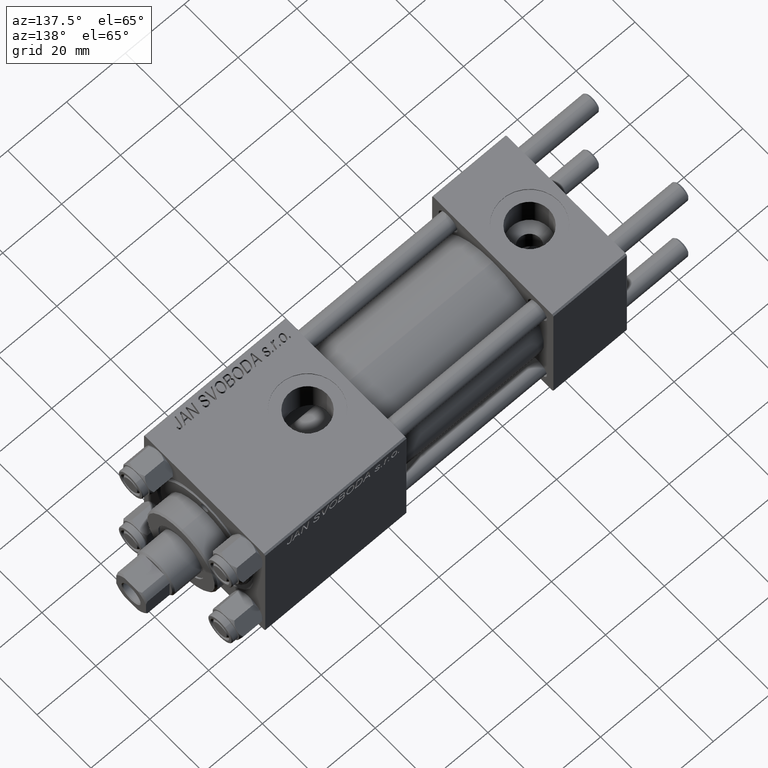
[diagram: clean part render]
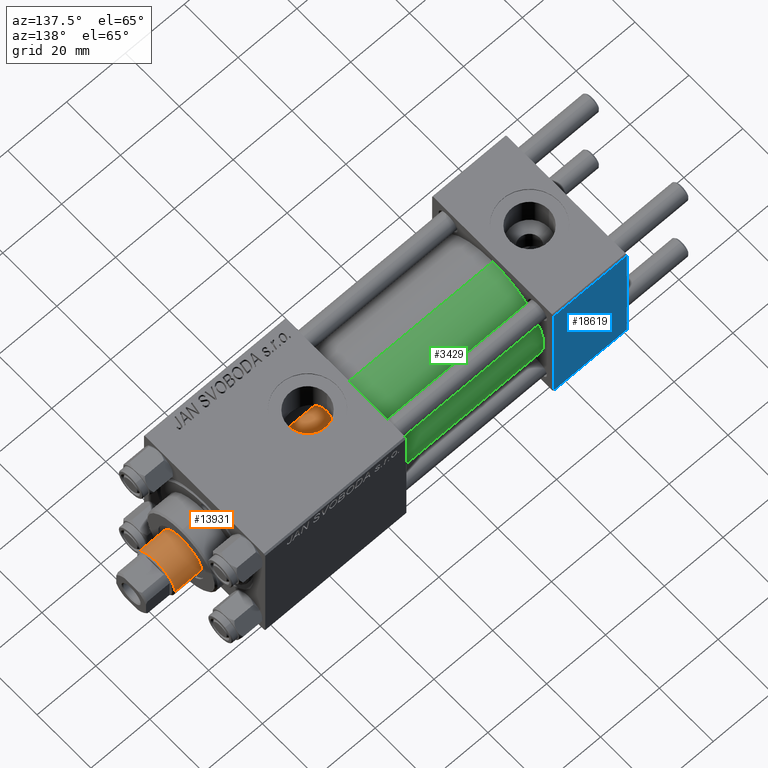
[diagram: same view with three faces highlighted in distinct colors, each labeled with its STEP entity id]
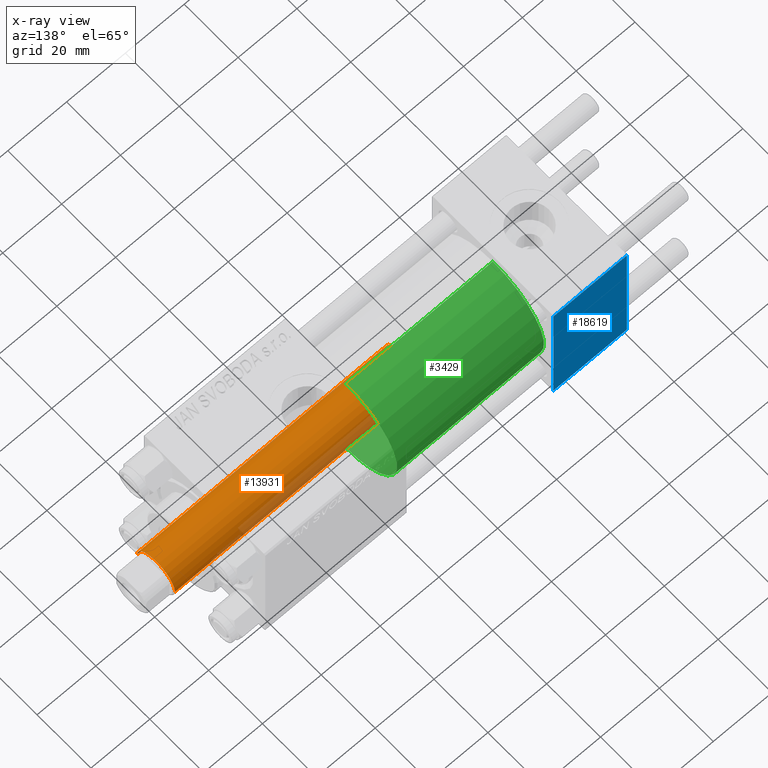
[diagram: x-ray of the same camera — body ghosted, the three highlighted faces saturated]
A machine part, auxiliary view with three faces highlighted in distinct colors.
The next image is the same camera in x-ray (body ghosted, the three faces saturated) — at least one of them is partly hidden behind the body in this view.
Their STEP definitions:

[orange] entity #13931 — the highlighted cylindrical surface (edge-blend (fillet) strip) has radius 7 mm, axis along (-1, 0, 0).
#1142 = DIRECTION ( 'NONE',  ( -1.000000000000000000, 0.000000000000000000, 0.000000000000000000 ) ) ;
#1919 = CARTESIAN_POINT ( 'NONE',  ( 7.000000000000000000, 8.572527594031473190E-16, 114.4999999999999858 ) ) ;
#2039 = EDGE_CURVE ( 'NONE', #17196, #36501, #16420, .T. ) ;
#2668 = ORIENTED_EDGE ( 'NONE', *, *, #44225, .T. ) ;
#5198 = DIRECTION ( 'NONE',  ( -0.000000000000000000, -0.000000000000000000, -1.000000000000000000 ) ) ;
#6184 = CYLINDRICAL_SURFACE ( 'NONE', #36808, 7.000000000000000000 ) ;
#6734 = ORIENTED_EDGE ( 'NONE', *, *, #2039, .T. ) ;
#9044 = CARTESIAN_POINT ( 'NONE',  ( -7.000000000000000000, 0.000000000000000000, 30.00000000000000000 ) ) ;
#10203 = LINE ( 'NONE', #36036, #46909 ) ;
#13931 = ADVANCED_FACE ( 'NONE', ( #40576 ), #6184, .T. ) ;
#14271 = AXIS2_PLACEMENT_3D ( 'NONE', #40460, #21251, #32663 ) ;
#15855 = CARTESIAN_POINT ( 'NONE',  ( -7.000000000000000000, 0.000000000000000000, 114.4999999999999858 ) ) ;
#15924 = VERTEX_POINT ( 'NONE', #9044 ) ;
#16420 = CIRCLE ( 'NONE', #29378, 7.000000000000000000 ) ;
#16968 = EDGE_CURVE ( 'NONE', #15924, #17793, #45786, .T. ) ;
#17196 = VERTEX_POINT ( 'NONE', #1919 ) ;
#17669 = VECTOR ( 'NONE', #42049, 1000.000000000000000 ) ;
#17793 = VERTEX_POINT ( 'NONE', #38552 ) ;
#21251 = DIRECTION ( 'NONE',  ( 0.000000000000000000, 0.000000000000000000, 1.000000000000000000 ) ) ;
#23094 = ORIENTED_EDGE ( 'NONE', *, *, #16968, .T. ) ;
#24401 = CARTESIAN_POINT ( 'NONE',  ( 0.000000000000000000, 0.000000000000000000, 115.0000000000000000 ) ) ;
#24869 = EDGE_CURVE ( 'NONE', #17196, #17793, #38004, .T. ) ;
#25889 = DIRECTION ( 'NONE',  ( 0.000000000000000000, 0.000000000000000000, -1.000000000000000000 ) ) ;
#26386 = DIRECTION ( 'NONE',  ( 1.000000000000000000, 0.000000000000000000, 0.000000000000000000 ) ) ;
#26633 = CARTESIAN_POINT ( 'NONE',  ( 7.000000000000000000, 8.572527594031473190E-16, 115.0000000000000000 ) ) ;
#29378 = AXIS2_PLACEMENT_3D ( 'NONE', #36770, #25889, #26386 ) ;
#32663 = DIRECTION ( 'NONE',  ( 1.000000000000000000, 0.000000000000000000, 0.000000000000000000 ) ) ;
#36036 = CARTESIAN_POINT ( 'NONE',  ( -7.000000000000000000, 0.000000000000000000, 115.0000000000000000 ) ) ;
#36501 = VERTEX_POINT ( 'NONE', #15855 ) ;
#36770 = CARTESIAN_POINT ( 'NONE',  ( 0.000000000000000000, 0.000000000000000000, 114.4999999999999858 ) ) ;
#36808 = AXIS2_PLACEMENT_3D ( 'NONE', #24401, #5198, #1142 ) ;
#37018 = DIRECTION ( 'NONE',  ( -0.000000000000000000, -0.000000000000000000, -1.000000000000000000 ) ) ;
#37383 = EDGE_LOOP ( 'NONE', ( #43362, #6734, #2668, #23094 ) ) ;
#38004 = LINE ( 'NONE', #26633, #17669 ) ;
#38552 = CARTESIAN_POINT ( 'NONE',  ( 7.000000000000000000, 8.572527594031473190E-16, 30.00000000000000000 ) ) ;
#40460 = CARTESIAN_POINT ( 'NONE',  ( 0.000000000000000000, 0.000000000000000000, 30.00000000000000000 ) ) ;
#40576 = FACE_OUTER_BOUND ( 'NONE', #37383, .T. ) ;
#42049 = DIRECTION ( 'NONE',  ( -0.000000000000000000, -0.000000000000000000, -1.000000000000000000 ) ) ;
#43362 = ORIENTED_EDGE ( 'NONE', *, *, #24869, .F. ) ;
#44225 = EDGE_CURVE ( 'NONE', #36501, #15924, #10203, .T. ) ;
#45786 = CIRCLE ( 'NONE', #14271, 7.000000000000000000 ) ;
#46909 = VECTOR ( 'NONE', #37018, 1000.000000000000000 ) ;

[blue] entity #18619 — the highlighted planar face has unit normal (0, 1, 0).
#127 = FACE_OUTER_BOUND ( 'NONE', #44895, .T. ) ;
#2417 = ORIENTED_EDGE ( 'NONE', *, *, #49058, .T. ) ;
#4231 = CARTESIAN_POINT ( 'NONE',  ( 0.000000000000000000, 22.50000000000000000, 22.50000000000000355 ) ) ;
#5618 = LINE ( 'NONE', #35980, #30427 ) ;
#6503 = CARTESIAN_POINT ( 'NONE',  ( 25.00000000000000000, 22.50000000000000000, -21.99999999999998224 ) ) ;
#7277 = LINE ( 'NONE', #4231, #39321 ) ;
#7666 = EDGE_CURVE ( 'NONE', #25345, #27950, #5618, .T. ) ;
#8096 = EDGE_CURVE ( 'NONE', #25345, #21640, #7277, .T. ) ;
#8263 = ORIENTED_EDGE ( 'NONE', *, *, #49020, .T. ) ;
#8650 = DIRECTION ( 'NONE',  ( 1.000000000000000000, 0.000000000000000000, 0.000000000000000000 ) ) ;
#10727 = VECTOR ( 'NONE', #28793, 1000.000000000000000 ) ;
#10984 = ORIENTED_EDGE ( 'NONE', *, *, #8096, .F. ) ;
#12286 = VECTOR ( 'NONE', #29290, 1000.000000000000000 ) ;
#12504 = CARTESIAN_POINT ( 'NONE',  ( 25.00000000000000000, 22.50000000000000000, 22.50000000000000355 ) ) ;
#18619 = ADVANCED_FACE ( 'NONE', ( #127 ), #35545, .T. ) ;
#19452 = CARTESIAN_POINT ( 'NONE',  ( 0.000000000000000000, 22.50000000000000000, -21.99999999999996803 ) ) ;
#20695 = LINE ( 'NONE', #24213, #10727 ) ;
#21640 = VERTEX_POINT ( 'NONE', #19452 ) ;
#23645 = DIRECTION ( 'NONE',  ( -0.000000000000000000, 1.000000000000000000, 0.000000000000000000 ) ) ;
#24213 = CARTESIAN_POINT ( 'NONE',  ( 25.00000000000000000, 22.50000000000000000, 22.50000000000000355 ) ) ;
#24821 = CARTESIAN_POINT ( 'NONE',  ( 25.00000000000000000, 22.50000000000000000, 21.99999999999999645 ) ) ;
#25345 = VERTEX_POINT ( 'NONE', #27813 ) ;
#27246 = DIRECTION ( 'NONE',  ( 0.000000000000000000, 0.000000000000000000, -1.000000000000000000 ) ) ;
#27813 = CARTESIAN_POINT ( 'NONE',  ( 0.000000000000000000, 22.50000000000000000, 21.99999999999999645 ) ) ;
#27950 = VERTEX_POINT ( 'NONE', #24821 ) ;
#28793 = DIRECTION ( 'NONE',  ( 0.000000000000000000, 0.000000000000000000, -1.000000000000000000 ) ) ;
#29290 = DIRECTION ( 'NONE',  ( -1.000000000000000000, 0.000000000000000000, 0.000000000000000000 ) ) ;
#30427 = VECTOR ( 'NONE', #8650, 1000.000000000000000 ) ;
#33087 = LINE ( 'NONE', #6503, #12286 ) ;
#35008 = CARTESIAN_POINT ( 'NONE',  ( 25.00000000000000000, 22.50000000000000000, -21.99999999999996803 ) ) ;
#35545 = PLANE ( 'NONE',  #37730 ) ;
#35980 = CARTESIAN_POINT ( 'NONE',  ( 25.00000000000000000, 22.50000000000000000, 21.99999999999999645 ) ) ;
#37730 = AXIS2_PLACEMENT_3D ( 'NONE', #12504, #23645, #38561 ) ;
#38561 = DIRECTION ( 'NONE',  ( 0.000000000000000000, -0.000000000000000000, 1.000000000000000000 ) ) ;
#39321 = VECTOR ( 'NONE', #27246, 1000.000000000000000 ) ;
#43091 = VERTEX_POINT ( 'NONE', #35008 ) ;
#44895 = EDGE_LOOP ( 'NONE', ( #8263, #2417, #10984, #44931 ) ) ;
#44931 = ORIENTED_EDGE ( 'NONE', *, *, #7666, .T. ) ;
#49020 = EDGE_CURVE ( 'NONE', #27950, #43091, #20695, .T. ) ;
#49058 = EDGE_CURVE ( 'NONE', #43091, #21640, #33087, .T. ) ;

[green] entity #3429 — the highlighted cylindrical surface (partial cylindrical patch) has radius 19 mm, axis along (-1, -0, -0).
#352 = CIRCLE ( 'NONE', #48853, 19.00000000000000000 ) ;
#2504 = VECTOR ( 'NONE', #37818, 1000.000000000000000 ) ;
#3429 = ADVANCED_FACE ( 'NONE', ( #29999 ), #30965, .T. ) ;
#3877 = CARTESIAN_POINT ( 'NONE',  ( 25.00000000000000000, 0.000000000000000000, 19.00000000000000000 ) ) ;
#4024 = DIRECTION ( 'NONE',  ( -1.000000000000000000, -0.000000000000000000, -0.000000000000000000 ) ) ;
#4383 = EDGE_LOOP ( 'NONE', ( #27136, #28229, #21607, #16410 ) ) ;
#4965 = DIRECTION ( 'NONE',  ( 1.000000000000000000, -0.000000000000000000, 0.000000000000000000 ) ) ;
#6806 = EDGE_CURVE ( 'NONE', #28402, #28810, #45788, .T. ) ;
#9182 = AXIS2_PLACEMENT_3D ( 'NONE', #30708, #10749, #45417 ) ;
#10749 = DIRECTION ( 'NONE',  ( -1.000000000000000000, -0.000000000000000000, -0.000000000000000000 ) ) ;
#11023 = EDGE_CURVE ( 'NONE', #28402, #27769, #352, .T. ) ;
#11363 = CARTESIAN_POINT ( 'NONE',  ( 75.00000000000001421, 2.326828918379970970E-15, -19.00000000000000000 ) ) ;
#12793 = CARTESIAN_POINT ( 'NONE',  ( 25.00000000000000000, 0.000000000000000000, 0.000000000000000000 ) ) ;
#16410 = ORIENTED_EDGE ( 'NONE', *, *, #43986, .F. ) ;
#20091 = VERTEX_POINT ( 'NONE', #3877 ) ;
#21427 = VECTOR ( 'NONE', #4024, 1000.000000000000000 ) ;
#21607 = ORIENTED_EDGE ( 'NONE', *, *, #42913, .T. ) ;
#22159 = CARTESIAN_POINT ( 'NONE',  ( 75.00000000000001421, 0.000000000000000000, 19.00000000000000000 ) ) ;
#22449 = DIRECTION ( 'NONE',  ( 0.000000000000000000, 0.000000000000000000, -1.000000000000000000 ) ) ;
#22682 = CARTESIAN_POINT ( 'NONE',  ( 75.00000000000001421, 0.000000000000000000, 0.000000000000000000 ) ) ;
#27136 = ORIENTED_EDGE ( 'NONE', *, *, #11023, .F. ) ;
#27769 = VERTEX_POINT ( 'NONE', #42284 ) ;
#28229 = ORIENTED_EDGE ( 'NONE', *, *, #6806, .T. ) ;
#28402 = VERTEX_POINT ( 'NONE', #40079 ) ;
#28536 = CARTESIAN_POINT ( 'NONE',  ( 25.00000000000000000, 2.326828918379970970E-15, -19.00000000000000000 ) ) ;
#28810 = VERTEX_POINT ( 'NONE', #28536 ) ;
#29804 = DIRECTION ( 'NONE',  ( 1.000000000000000000, 0.000000000000000000, 0.000000000000000000 ) ) ;
#29999 = FACE_OUTER_BOUND ( 'NONE', #4383, .T. ) ;
#30708 = CARTESIAN_POINT ( 'NONE',  ( 75.00000000000001421, 0.000000000000000000, 0.000000000000000000 ) ) ;
#30965 = CYLINDRICAL_SURFACE ( 'NONE', #9182, 19.00000000000000000 ) ;
#33957 = CIRCLE ( 'NONE', #42821, 19.00000000000000000 ) ;
#37818 = DIRECTION ( 'NONE',  ( -1.000000000000000000, -0.000000000000000000, -0.000000000000000000 ) ) ;
#39596 = DIRECTION ( 'NONE',  ( 0.000000000000000000, 0.000000000000000000, 1.000000000000000000 ) ) ;
#40079 = CARTESIAN_POINT ( 'NONE',  ( 75.00000000000001421, 2.326828918379970970E-15, -19.00000000000000000 ) ) ;
#42284 = CARTESIAN_POINT ( 'NONE',  ( 75.00000000000001421, 0.000000000000000000, 19.00000000000000000 ) ) ;
#42821 = AXIS2_PLACEMENT_3D ( 'NONE', #12793, #4965, #39596 ) ;
#42913 = EDGE_CURVE ( 'NONE', #28810, #20091, #33957, .T. ) ;
#43986 = EDGE_CURVE ( 'NONE', #27769, #20091, #45175, .T. ) ;
#45175 = LINE ( 'NONE', #22159, #2504 ) ;
#45417 = DIRECTION ( 'NONE',  ( 0.000000000000000000, 0.000000000000000000, 1.000000000000000000 ) ) ;
#45788 = LINE ( 'NONE', #11363, #21427 ) ;
#48853 = AXIS2_PLACEMENT_3D ( 'NONE', #22682, #29804, #22449 ) ;